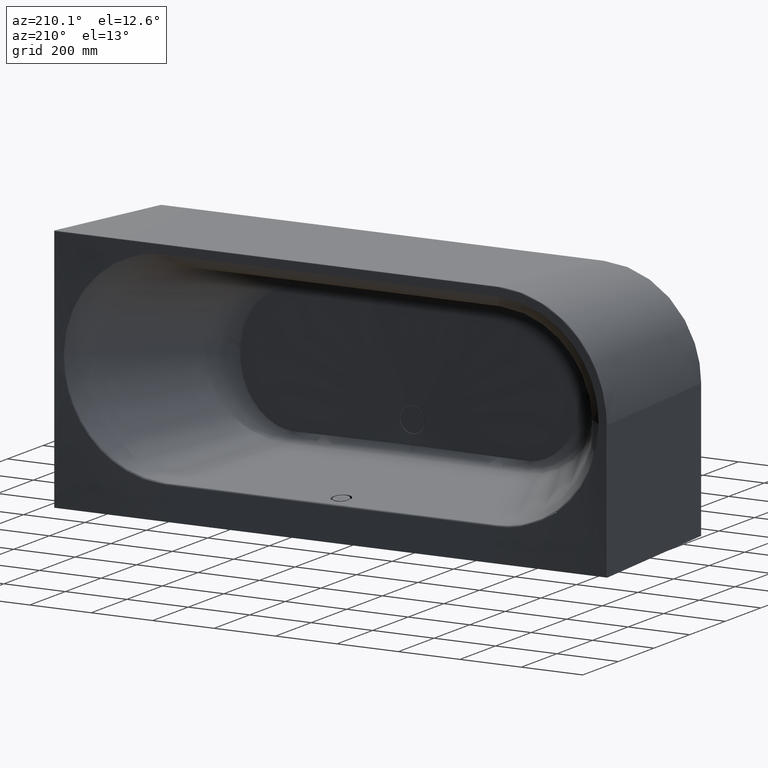
[diagram: clean part render]
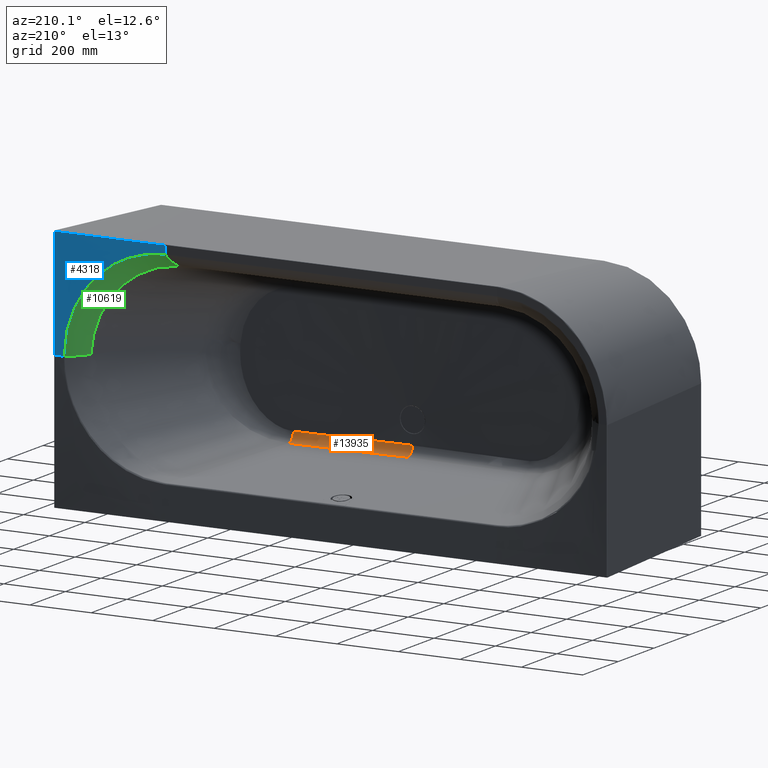
[diagram: same view with three faces highlighted in distinct colors, each labeled with its STEP entity id]
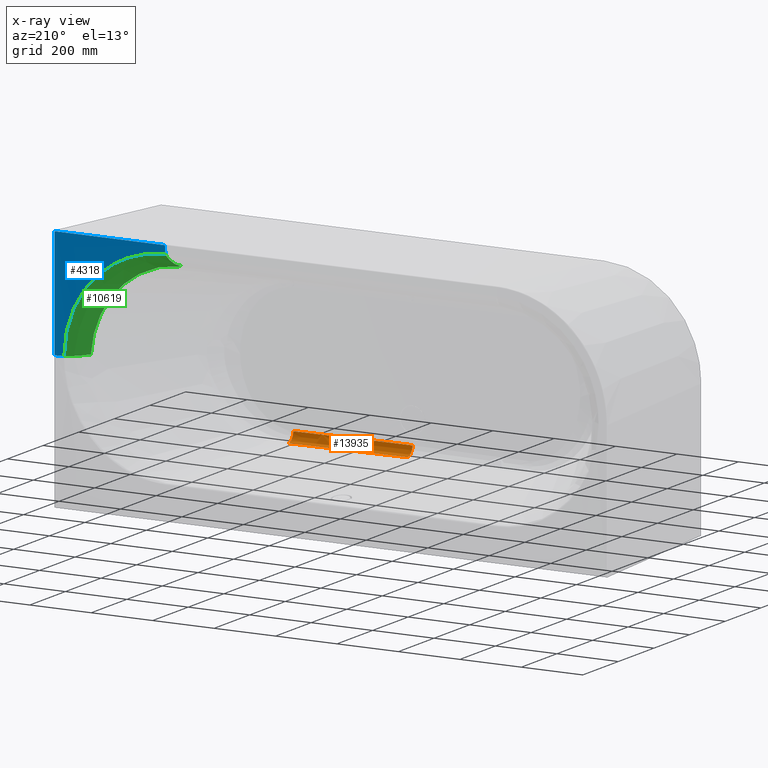
[diagram: x-ray of the same camera — body ghosted, the three highlighted faces saturated]
A machine part, auxiliary view with three faces highlighted in distinct colors.
The next image is the same camera in x-ray (body ghosted, the three faces saturated) — at least one of them is partly hidden behind the body in this view.
Their STEP definitions:

[orange] entity #13935 — the highlighted face is a freeform B-spline surface patch.
#2553=CARTESIAN_POINT('',(7.703867951122E-9,-4.327667911716E2,
-2.372312732553E2));
#2554=CARTESIAN_POINT('',(1.628760780293E0,-4.327668197229E2,
-2.372312697497E2));
#2555=CARTESIAN_POINT('',(4.885947894797E0,-4.327642047191E2,
-2.372315908318E2));
#2556=CARTESIAN_POINT('',(9.769236931457E0,-4.327525532399E2,
-2.372330214535E2));
#2557=CARTESIAN_POINT('',(1.465492356600E1,-4.327332759878E2,
-2.372353884025E2));
#2558=CARTESIAN_POINT('',(1.954616153002E1,-4.327065746793E2,
-2.372386669109E2));
#2559=CARTESIAN_POINT('',(2.445120687834E1,-4.326726898905E2,
-2.372428274398E2));
#2560=CARTESIAN_POINT('',(2.938164983050E1,-4.326318465662E2,
-2.372478423695E2));
#2561=CARTESIAN_POINT('',(3.435247625300E1,-4.325842313127E2,
-2.372536887875E2));
#2562=CARTESIAN_POINT('',(3.938154428605E1,-4.325299650725E2,
-2.372603518439E2));
#2563=CARTESIAN_POINT('',(4.448910670874E1,-4.324690916650E2,
-2.372678261585E2));
#2564=CARTESIAN_POINT('',(4.969747707414E1,-4.324015700110E2,
-2.372761167752E2));
#2565=CARTESIAN_POINT('',(5.503082689678E1,-4.323272712277E2,
-2.372852395187E2));
#2566=CARTESIAN_POINT('',(6.051514648527E1,-4.322459768184E2,
-2.372952212170E2));
#2567=CARTESIAN_POINT('',(6.617833841176E1,-4.321573769023E2,
-2.373060999188E2));
#2568=CARTESIAN_POINT('',(7.205043232266E1,-4.320610671565E2,
-2.373179252687E2));
#2569=CARTESIAN_POINT('',(7.816390474154E1,-4.319565437603E2,
-2.373307591280E2));
#2570=CARTESIAN_POINT('',(8.455409766700E1,-4.318431956991E2,
-2.373446765199E2));
#2571=CARTESIAN_POINT('',(9.125973571231E1,-4.317202938418E2,
-2.373597669705E2));
#2572=CARTESIAN_POINT('',(9.832354914266E1,-4.315869761096E2,
-2.373761363297E2));
#2573=CARTESIAN_POINT('',(1.057930172383E2,-4.314422278445E2,
-2.373939091818E2));
#2574=CARTESIAN_POINT('',(1.137212534454E2,-4.312848562032E2,
-2.374132319897E2));
#2575=CARTESIAN_POINT('',(1.221680636093E2,-4.311134569078E2,
-2.374342771770E2));
#2576=CARTESIAN_POINT('',(1.312012155795E2,-4.309263711184E2,
-2.374572484235E2));
#2577=CARTESIAN_POINT('',(1.408979785285E2,-4.307216290945E2,
-2.374823875830E2));
#2578=CARTESIAN_POINT('',(1.513469957227E2,-4.304968762877E2,
-2.375099837577E2));
#2579=CARTESIAN_POINT('',(1.626505760472E2,-4.302492753373E2,
-2.375403853316E2));
#2580=CARTESIAN_POINT('',(1.749276631571E2,-4.299753721822E2,
-2.375740164103E2));
#2581=CARTESIAN_POINT('',(1.883168767475E2,-4.296709274818E2,
-2.376113975191E2));
#2582=CARTESIAN_POINT('',(2.029834314150E2,-4.293306193035E2,
-2.376531821094E2));
#2583=CARTESIAN_POINT('',(2.191158564827E2,-4.289478889911E2,
-2.377001754827E2));
#2584=CARTESIAN_POINT('',(2.369654989883E2,-4.285137549234E2,
-2.377534804436E2));
#2585=CARTESIAN_POINT('',(2.567583621949E2,-4.280182065575E2,
-2.378143261320E2));
#2586=CARTESIAN_POINT('',(2.789531735123E2,-4.274440453217E2,
-2.378848242678E2));
#2587=CARTESIAN_POINT('',(3.041221837856E2,-4.267649339677E2,
-2.379682086551E2));
#2588=CARTESIAN_POINT('',(3.278995283461E2,-4.260920275845E2,
-2.380508311777E2));
#2589=CARTESIAN_POINT('',(3.480918379955E2,-4.254995223026E2,
-2.381235816495E2));
#2590=CARTESIAN_POINT('',(3.662975883604E2,-4.249247601321E2,
-2.381941536785E2));
#2591=CARTESIAN_POINT('',(3.772034911764E2,-4.246254079085E2,
-2.382309092405E2));
#2592=CARTESIAN_POINT('',(3.823320302679E2,-4.243401347451E2,
-2.382659363806E2));
#2709=CARTESIAN_POINT('',(-7.786323620313E-9,-4.591004420748E2,
-2.082401845906E2));
#2710=CARTESIAN_POINT('',(1.650915897211E0,-4.591004414759E2,
-2.082402131988E2));
#2711=CARTESIAN_POINT('',(4.935865286333E0,-4.590975894704E2,
-2.082396367829E2));
#2712=CARTESIAN_POINT('',(9.873326611859E0,-4.590848259537E2,
-2.082371513231E2));
#2713=CARTESIAN_POINT('',(1.480828591157E1,-4.590637337074E2,
-2.082331718072E2));
#2714=CARTESIAN_POINT('',(1.974789894105E1,-4.590345470903E2,
-2.082279346083E2));
#2715=CARTESIAN_POINT('',(2.469883357696E1,-4.589975248142E2,
-2.082217488496E2));
#2716=CARTESIAN_POINT('',(2.967275630651E1,-4.589529101565E2,
-2.082149481570E2));
#2717=CARTESIAN_POINT('',(3.468442830560E1,-4.589008968055E2,
-2.082078773653E2));
#2718=CARTESIAN_POINT('',(3.975168728515E1,-4.588416051759E2,
-2.082008719244E2));
#2719=CARTESIAN_POINT('',(4.489480469652E1,-4.587750690995E2,
-2.081942510560E2));
#2720=CARTESIAN_POINT('',(5.013616963831E1,-4.587012288354E2,
-2.081883141830E2));
#2721=CARTESIAN_POINT('',(5.550005825305E1,-4.586199283577E2,
-2.081833418770E2));
#2722=CARTESIAN_POINT('',(6.101258423221E1,-4.585309141348E2,
-2.081795986273E2));
#2723=CARTESIAN_POINT('',(6.670178195909E1,-4.584338339458E2,
-2.081773366687E2));
#2724=CARTESIAN_POINT('',(7.259781499419E1,-4.583282345548E2,
-2.081768000180E2));
#2725=CARTESIAN_POINT('',(7.873329155187E1,-4.582135575761E2,
-2.081782283037E2));
#2726=CARTESIAN_POINT('',(8.514368049998E1,-4.580891330352E2,
-2.081818600896E2));
#2727=CARTESIAN_POINT('',(9.186782704157E1,-4.579541702395E2,
-2.081879354709E2));
#2728=CARTESIAN_POINT('',(9.894857509752E1,-4.578077455647E2,
-2.081966977129E2));
#2729=CARTESIAN_POINT('',(1.064335105564E2,-4.576487866918E2,
-2.082083936066E2));
#2730=CARTESIAN_POINT('',(1.143758466970E2,-4.574760527118E2,
-2.082232720811E2));
#2731=CARTESIAN_POINT('',(1.228354829343E2,-4.572881093027E2,
-2.082415803511E2));
#2732=CARTESIAN_POINT('',(1.318802752743E2,-4.570832980022E2,
-2.082635565150E2));
#2733=CARTESIAN_POINT('',(1.415875763656E2,-4.568596981314E2,
-2.082894169273E2));
#2734=CARTESIAN_POINT('',(1.520461103344E2,-4.566150796650E2,
-2.083193359236E2));
#2735=CARTESIAN_POINT('',(1.633582635682E2,-4.563468450541E2,
-2.083534136836E2));
#2736=CARTESIAN_POINT('',(1.756430630377E2,-4.560519529518E2,
-2.083916279851E2));
#2737=CARTESIAN_POINT('',(1.890392007897E2,-4.557268399570E2,
-2.084337545054E2));
#2738=CARTESIAN_POINT('',(2.037120110747E2,-4.553672424803E2,
-2.084792652832E2));
#2739=CARTESIAN_POINT('',(2.198500577651E2,-4.549682757979E2,
-2.085270982391E2));
#2740=CARTESIAN_POINT('',(2.377049700598E2,-4.545234342490E2,
-2.085755495818E2));
#2741=CARTESIAN_POINT('',(2.575026767032E2,-4.540267898601E2,
-2.086213187438E2));
#2742=CARTESIAN_POINT('',(2.797020498868E2,-4.534665580398E2,
-2.086602676698E2));
#2743=CARTESIAN_POINT('',(3.048773141846E2,-4.528276876542E2,
-2.086829933329E2));
#2744=CARTESIAN_POINT('',(3.286595281837E2,-4.522215110021E2,
-2.086778678380E2));
#2745=CARTESIAN_POINT('',(3.488560974550E2,-4.517048833585E2,
-2.086562057207E2));
#2746=CARTESIAN_POINT('',(3.670663008009E2,-4.512392005192E2,
-2.085948929944E2));
#2747=CARTESIAN_POINT('',(3.779742338080E2,-4.509569028190E2,
-2.086113983646E2));
#2748=CARTESIAN_POINT('',(3.831061649916E2,-4.508271108222E2,
-2.084702241403E2));
#2750=CARTESIAN_POINT('',(3.831061649916E2,-4.508271108222E2,
-2.084702241403E2));
#3540=CARTESIAN_POINT('',(-7.686657455598E-4,-4.291107093412E2,
-2.074548757974E2));
#3541=DIRECTION('',(9.999999994280E-1,2.503440229521E-5,2.274173020943E-5));
#3542=DIRECTION('',(2.562113273607E-5,-9.996573246440E-1,-2.617694843106E-2));
#3543=AXIS2_PLACEMENT_3D('',#3540,#3541,#3542);
#3545=CARTESIAN_POINT('',(3.812972816193E2,-4.207283110227E2,
-2.083476103910E2));
#3546=DIRECTION('',(9.978328528851E-1,5.985662484699E-2,2.732731536530E-2));
#3547=DIRECTION('',(5.998945603921E-2,-9.981907282958E-1,-4.066338453040E-3));
#3548=AXIS2_PLACEMENT_3D('',#3545,#3546,#3547);
#3550=CARTESIAN_POINT('',(3.823320302679E2,-4.243401347451E2,
-2.382659363806E2));
#3719=VERTEX_POINT('',#2750);
#3721=VERTEX_POINT('',#3550);
#3792=CARTESIAN_POINT('',(-3.143018316388E-8,-4.591004420846E2,
-2.082401845909E2));
#3793=CARTESIAN_POINT('',(2.887497542068E-8,-4.327667911325E2,
-2.372312732601E2));
#3794=VERTEX_POINT('',#3792);
#3795=VERTEX_POINT('',#3793);
#13763=CARTESIAN_POINT('',(-3.848644144678E0,-4.589888634415E2,
-2.047830534073E2));
#13764=CARTESIAN_POINT('',(-2.198530355420E0,-4.589911042947E2,
-2.047827620912E2));
#13765=CARTESIAN_POINT('',(1.133046071487E0,-4.589927250630E2,
-2.047824842242E2));
#13766=CARTESIAN_POINT('',(6.146124959773E0,-4.589862916815E2,
-2.047838689562E2));
#13767=CARTESIAN_POINT('',(1.119036943568E1,-4.589708942010E2,
-2.047872393327E2));
#13768=CARTESIAN_POINT('',(1.623687385901E1,-4.589467702271E2,
-2.047924761880E2));
#13769=CARTESIAN_POINT('',(2.129135994239E1,-4.589141802797E2,
-2.047995310594E2));
#13770=CARTESIAN_POINT('',(2.636297671075E1,-4.588734064929E2,
-2.048083409874E2));
#13771=CARTESIAN_POINT('',(3.146492158567E1,-4.588247035932E2,
-2.048188598726E2));
#13772=CARTESIAN_POINT('',(3.661388747545E1,-4.587682650117E2,
-2.048310577706E2));
#13773=CARTESIAN_POINT('',(4.182964689360E1,-4.587041986223E2,
-2.048449263650E2));
#13774=CARTESIAN_POINT('',(4.713456728300E1,-4.586325135119E2,
-2.048604802040E2));
#13775=CARTESIAN_POINT('',(5.255328402738E1,-4.585531134713E2,
-2.048777573341E2));
#13776=CARTESIAN_POINT('',(5.811252946073E1,-4.584657944310E2,
-2.048968190407E2));
#13777=CARTESIAN_POINT('',(6.384113130335E1,-4.583702431664E2,
-2.049177493290E2));
#13778=CARTESIAN_POINT('',(6.977016154246E1,-4.582660355489E2,
-2.049406543246E2));
#13779=CARTESIAN_POINT('',(7.593321957622E1,-4.581526331782E2,
-2.049656616710E2));
#13780=CARTESIAN_POINT('',(8.236683685286E1,-4.580293776496E2,
-2.049929198938E2));
#13781=CARTESIAN_POINT('',(8.911099840206E1,-4.578954819162E2,
-2.050225975605E2));
#13782=CARTESIAN_POINT('',(9.620978511129E1,-4.577500182731E2,
-2.050548819963E2));
#13783=CARTESIAN_POINT('',(1.037121493075E2,-4.575919024491E2,
-2.050899771320E2));
#13784=CARTESIAN_POINT('',(1.116728452578E2,-4.574198731680E2,
-2.051280999028E2));
#13785=CARTESIAN_POINT('',(1.201535462797E2,-4.572324663475E2,
-2.051694743169E2));
#13786=CARTESIAN_POINT('',(1.292241914099E2,-4.570279828343E2,
-2.052143218900E2));
#13787=CARTESIAN_POINT('',(1.389646215853E2,-4.568044481607E2,
-2.052628465136E2));
#13788=CARTESIAN_POINT('',(1.494665761056E2,-4.565595624916E2,
-2.053152107831E2));
#13789=CARTESIAN_POINT('',(1.608361793491E2,-4.562906374858E2,
-2.053714994896E2));
#13790=CARTESIAN_POINT('',(1.731969585337E2,-4.559945187834E2,
-2.054316628257E2));
#13791=CARTESIAN_POINT('',(1.866939674672E2,-4.556674799562E2,
-2.054954310672E2));
#13792=CARTESIAN_POINT('',(2.014978200063E2,-4.553051164209E2,
-2.055621748825E2));
#13793=CARTESIAN_POINT('',(2.178146355645E2,-4.549020914581E2,
-2.056307201213E2));
#13794=CARTESIAN_POINT('',(2.358809049867E2,-4.544522538632E2,
-2.056989388050E2));
#13795=CARTESIAN_POINT('',(2.560264563009E2,-4.539470442867E2,
-2.057635562273E2));
#13796=CARTESIAN_POINT('',(2.784802491737E2,-4.533804040196E2,
-2.058181243120E2));
#13797=CARTESIAN_POINT('',(3.022911887161E2,-4.527760224925E2,
-2.058532803769E2));
#13798=CARTESIAN_POINT('',(3.256333013257E2,-4.521813752137E2,
-2.058549373631E2));
#13799=CARTESIAN_POINT('',(3.468882905723E2,-4.516364239808E2,
-2.058431546483E2));
#13800=CARTESIAN_POINT('',(3.657333981040E2,-4.511573345488E2,
-2.057680864584E2));
#13801=CARTESIAN_POINT('',(3.788736423986E2,-4.508091547838E2,
-2.057971093800E2));
#13802=CARTESIAN_POINT('',(3.857211269546E2,-4.506483903448E2,
-2.055941323567E2));
#13803=CARTESIAN_POINT('',(3.870661539529E2,-4.506231136807E2,
-2.055374236299E2));
#13804=CARTESIAN_POINT('',(-3.847645282624E0,-4.606299259882E2,
-2.231338398028E2));
#13805=CARTESIAN_POINT('',(-2.197935841022E0,-4.606321671259E2,
-2.231335586926E2));
#13806=CARTESIAN_POINT('',(1.132347213178E0,-4.606337907400E2,
-2.231333305721E2));
#13807=CARTESIAN_POINT('',(6.140911637599E0,-4.606273322853E2,
-2.231343408205E2));
#13808=CARTESIAN_POINT('',(1.118105237560E1,-4.606118724526E2,
-2.231367795793E2));
#13809=CARTESIAN_POINT('',(1.622365849407E1,-4.605876512170E2,
-2.231405844861E2));
#13810=CARTESIAN_POINT('',(2.127437400368E1,-4.605549293761E2,
-2.231457175083E2));
#13811=CARTESIAN_POINT('',(2.634241566554E1,-4.605139887299E2,
-2.231521336996E2));
#13812=CARTESIAN_POINT('',(3.144095276459E1,-4.604650834949E2,
-2.231597964323E2));
#13813=CARTESIAN_POINT('',(3.658668587216E1,-4.604084059825E2,
-2.231686798311E2));
#13814=CARTESIAN_POINT('',(4.179937948689E1,-4.603440625557E2,
-2.231787726365E2));
#13815=CARTESIAN_POINT('',(4.710139758554E1,-4.602720603083E2,
-2.231900796991E2));
#13816=CARTESIAN_POINT('',(5.251737126196E1,-4.601923005967E2,
-2.232026227130E2));
#13817=CARTESIAN_POINT('',(5.807403072109E1,-4.601045764703E2,
-2.232164403218E2));
#13818=CARTESIAN_POINT('',(6.380020379624E1,-4.600085713902E2,
-2.232315880281E2));
#13819=CARTESIAN_POINT('',(6.972696571451E1,-4.599038574947E2,
-2.232481381093E2));
#13820=CARTESIAN_POINT('',(7.588792285657E1,-4.597898922574E2,
-2.232661796564E2));
#13821=CARTESIAN_POINT('',(8.231961815903E1,-4.596660127977E2,
-2.232858187837E2));
#13822=CARTESIAN_POINT('',(8.906205351170E1,-4.595314273175E2,
-2.233071789855E2));
#13823=CARTESIAN_POINT('',(9.615933309954E1,-4.593852032032E2,
-2.233304015896E2));
#13824=CARTESIAN_POINT('',(1.036604403584E2,-4.592262513068E2,
-2.233556461871E2));
#13825=CARTESIAN_POINT('',(1.116201701936E2,-4.590533058009E2,
-2.233830908743E2));
#13826=CARTESIAN_POINT('',(1.201002483363E2,-4.588648988243E2,
-2.234129320419E2));
#13827=CARTESIAN_POINT('',(1.291706808918E2,-4.586593288961E2,
-2.234453833124E2));
#13828=CARTESIAN_POINT('',(1.389113943672E2,-4.584346216856E2,
-2.234806730245E2));
#13829=CARTESIAN_POINT('',(1.494142368869E2,-4.581884814866E2,
-2.235190393005E2));
#13830=CARTESIAN_POINT('',(1.607854723525E2,-4.579182303273E2,
-2.235607213558E2));
#13831=CARTESIAN_POINT('',(1.731488039025E2,-4.576207339363E2,
-2.236059443630E2));
#13832=CARTESIAN_POINT('',(1.866495214606E2,-4.572923004861E2,
-2.236548959874E2));
#13833=CARTESIAN_POINT('',(2.014585074433E2,-4.569285833727E2,
-2.237076824410E2));
#13834=CARTESIAN_POINT('',(2.177823716997E2,-4.565243345176E2,
-2.237642801635E2));
#13835=CARTESIAN_POINT('',(2.358577249408E2,-4.560735567079E2,
-2.238243711204E2));
#13836=CARTESIAN_POINT('',(2.560165486965E2,-4.555678752215E2,
-2.238874089993E2));
#13837=CARTESIAN_POINT('',(2.784831796779E2,-4.550017224919E2,
-2.239514264300E2));
#13838=CARTESIAN_POINT('',(3.023262263155E2,-4.543987007298E2,
-2.240112699228E2));
#13839=CARTESIAN_POINT('',(3.256563841997E2,-4.538080364174E2,
-2.240574955364E2));
#13840=CARTESIAN_POINT('',(3.470196023125E2,-4.532653278962E2,
-2.240961239832E2));
#13841=CARTESIAN_POINT('',(3.657109752399E2,-4.527942364667E2,
-2.241027594752E2));
#13842=CARTESIAN_POINT('',(3.790600018144E2,-4.524515017584E2,
-2.241455250204E2));
#13843=CARTESIAN_POINT('',(3.865324906483E2,-4.522486216950E2,
-2.240831391057E2));
#13844=CARTESIAN_POINT('',(3.880242674743E2,-4.522127912462E2,
-2.240607502974E2));
#13845=CARTESIAN_POINT('',(-3.828732414101E0,-4.483943857760E2,
-2.369082961139E2));
#13846=CARTESIAN_POINT('',(-2.187109958426E0,-4.483966091815E2,
-2.369080239735E2));
#13847=CARTESIAN_POINT('',(1.126754365561E0,-4.483981917993E2,
-2.369078339955E2));
#13848=CARTESIAN_POINT('',(6.110651070679E0,-4.483920136225E2,
-2.369085600889E2));
#13849=CARTESIAN_POINT('',(1.112639240786E1,-4.483772466912E2,
-2.369102924484E2));
#13850=CARTESIAN_POINT('',(1.614531865728E1,-4.483540894864E2,
-2.369130115924E2));
#13851=CARTESIAN_POINT('',(2.117331485281E1,-4.483227904171E2,
-2.369166879265E2));
#13852=CARTESIAN_POINT('',(2.621977508091E1,-4.482836132720E2,
-2.369212906056E2));
#13853=CARTESIAN_POINT('',(3.129797794550E1,-4.482367996712E2,
-2.369267907724E2));
#13854=CARTESIAN_POINT('',(3.642467712894E1,-4.481825333143E2,
-2.369331662096E2));
#13855=CARTESIAN_POINT('',(4.161964531540E1,-4.481209172419E2,
-2.369404039961E2));
#13856=CARTESIAN_POINT('',(4.690522250730E1,-4.480519605070E2,
-2.369485021652E2));
#13857=CARTESIAN_POINT('',(5.230599430801E1,-4.479755716510E2,
-2.369574705143E2));
#13858=CARTESIAN_POINT('',(5.784863241086E1,-4.478915558452E2,
-2.369673309872E2));
#13859=CARTESIAN_POINT('',(6.356189930943E1,-4.477996132414E2,
-2.369781179140E2));
#13860=CARTESIAN_POINT('',(6.947680236922E1,-4.476993368018E2,
-2.369898783216E2));
#13861=CARTESIAN_POINT('',(7.562688042075E1,-4.475902084404E2,
-2.370026724630E2));
#13862=CARTESIAN_POINT('',(8.204861092483E1,-4.474715926914E2,
-2.370165746683E2));
#13863=CARTESIAN_POINT('',(8.878193337989E1,-4.473427272795E2,
-2.370316746057E2));
#13864=CARTESIAN_POINT('',(9.587089316015E1,-4.472027100110E2,
-2.370480790423E2));
#13865=CARTESIAN_POINT('',(1.033644186221E2,-4.470504812885E2,
-2.370659142145E2));
#13866=CARTESIAN_POINT('',(1.113172532409E2,-4.468848013717E2,
-2.370853289545E2));
#13867=CARTESIAN_POINT('',(1.197910747213E2,-4.467042211839E2,
-2.371064987710E2));
#13868=CARTESIAN_POINT('',(1.288558441755E2,-4.465070450388E2,
-2.371296311644E2));
#13869=CARTESIAN_POINT('',(1.385914456608E2,-4.462912829842E2,
-2.371549725747E2));
#13870=CARTESIAN_POINT('',(1.490896867738E2,-4.460545897666E2,
-2.371828175028E2));
#13871=CARTESIAN_POINT('',(1.604567920009E2,-4.457941853778E2,
-2.372135206847E2));
#13872=CARTESIAN_POINT('',(1.728164251207E2,-4.455067531946E2,
-2.372475132130E2));
#13873=CARTESIAN_POINT('',(1.863138352449E2,-4.451882974749E2,
-2.372853254259E2));
#13874=CARTESIAN_POINT('',(2.011198605191E2,-4.448339819384E2,
-2.373276149711E2));
#13875=CARTESIAN_POINT('',(2.174410597893E2,-4.444377924499E2,
-2.373752204419E2));
#13876=CARTESIAN_POINT('',(2.355139817437E2,-4.439925224826E2,
-2.374291829555E2));
#13877=CARTESIAN_POINT('',(2.556705280049E2,-4.434879852811E2,
-2.374909945308E2));
#13878=CARTESIAN_POINT('',(2.781349218341E2,-4.429155827019E2,
-2.375620811952E2));
#13879=CARTESIAN_POINT('',(3.019758118731E2,-4.422962502743E2,
-2.376403198787E2));
#13880=CARTESIAN_POINT('',(3.253036465122E2,-4.416755261482E2,
-2.377202123669E2));
#13881=CARTESIAN_POINT('',(3.466651766477E2,-4.411003326532E2,
-2.377958213117E2));
#13882=CARTESIAN_POINT('',(3.653532775195E2,-4.405707358932E2,
-2.378660117245E2));
#13883=CARTESIAN_POINT('',(3.787035961723E2,-4.402295679328E2,
-2.379139673516E2));
#13884=CARTESIAN_POINT('',(3.861704523370E2,-4.399047411706E2,
-2.379604641482E2));
#13885=CARTESIAN_POINT('',(3.876599640546E2,-4.398364895250E2,
-2.379675002881E2));
#13886=CARTESIAN_POINT('',(-3.803801324660E0,-4.299781331619E2,
-2.374425870165E2));
#13887=CARTESIAN_POINT('',(-2.172861953814E0,-4.299803319716E2,
-2.374423169681E2));
#13888=CARTESIAN_POINT('',(1.119785308913E0,-4.299818555370E2,
-2.374421295378E2));
#13889=CARTESIAN_POINT('',(6.074376501608E0,-4.299760867004E2,
-2.374428405321E2));
#13890=CARTESIAN_POINT('',(1.106076947085E1,-4.299623321043E2,
-2.374445360204E2));
#13891=CARTESIAN_POINT('',(1.605112841290E1,-4.299407309705E2,
-2.374471985089E2));
#13892=CARTESIAN_POINT('',(2.105174651159E1,-4.299115144451E2,
-2.374507995413E2));
#13893=CARTESIAN_POINT('',(2.607219323408E1,-4.298749219573E2,
-2.374553095927E2));
#13894=CARTESIAN_POINT('',(3.112592519960E1,-4.298311783676E2,
-2.374607009873E2));
#13895=CARTESIAN_POINT('',(3.622976124391E1,-4.297804566879E2,
-2.374669524540E2));
#13896=CARTESIAN_POINT('',(4.140349328853E1,-4.297228569148E2,
-2.374740517369E2));
#13897=CARTESIAN_POINT('',(4.666943193274E1,-4.296583927804E2,
-2.374819972202E2));
#13898=CARTESIAN_POINT('',(5.205210470126E1,-4.295869851111E2,
-2.374907987428E2));
#13899=CARTESIAN_POINT('',(5.757810519582E1,-4.295084585792E2,
-2.375004779948E2));
#13900=CARTESIAN_POINT('',(6.327610621485E1,-4.294225395337E2,
-2.375110687805E2));
#13901=CARTESIAN_POINT('',(6.917701884422E1,-4.293288532200E2,
-2.375226173565E2));
#13902=CARTESIAN_POINT('',(7.531428231920E1,-4.292269191868E2,
-2.375351829906E2));
#13903=CARTESIAN_POINT('',(8.172427284353E1,-4.291161440297E2,
-2.375488388475E2));
#13904=CARTESIAN_POINT('',(8.844682751555E1,-4.289958107021E2,
-2.375636732919E2));
#13905=CARTESIAN_POINT('',(9.552588778119E1,-4.288650636246E2,
-2.375797917051E2));
#13906=CARTESIAN_POINT('',(1.030102753731E2,-4.287228885910E2,
-2.375973189334E2));
#13907=CARTESIAN_POINT('',(1.109546226161E2,-4.285680861787E2,
-2.376164025258E2));
#13908=CARTESIAN_POINT('',(1.194204889566E2,-4.283992368436E2,
-2.376372169789E2));
#13909=CARTESIAN_POINT('',(1.284777067512E2,-4.282146551719E2,
-2.376599692932E2));
#13910=CARTESIAN_POINT('',(1.382060162876E2,-4.280123296560E2,
-2.376849062780E2));
#13911=CARTESIAN_POINT('',(1.486970607731E2,-4.277898429838E2,
-2.377123242046E2));
#13912=CARTESIAN_POINT('',(1.600568711320E2,-4.275442648837E2,
-2.377425817648E2));
#13913=CARTESIAN_POINT('',(1.724088812586E2,-4.272720086356E2,
-2.377761173926E2));
#13914=CARTESIAN_POINT('',(1.858980481948E2,-4.269686272232E2,
-2.378134738488E2));
#13915=CARTESIAN_POINT('',(2.006948808302E2,-4.266285550297E2,
-2.378553292674E2));
#13916=CARTESIAN_POINT('',(2.170053776484E2,-4.262446389993E2,
-2.379025536830E2));
#13917=CARTESIAN_POINT('',(2.350658824373E2,-4.258078606178E2,
-2.379562416953E2));
#13918=CARTESIAN_POINT('',(2.552060337629E2,-4.253053641657E2,
-2.380179515254E2));
#13919=CARTESIAN_POINT('',(2.776545222996E2,-4.247239053702E2,
-2.380892809159E2));
#13920=CARTESIAN_POINT('',(3.014603485001E2,-4.240808509024E2,
-2.381680523755E2));
#13921=CARTESIAN_POINT('',(3.247969526452E2,-4.234149311559E2,
-2.382495342489E2));
#13922=CARTESIAN_POINT('',(3.460479396613E2,-4.227929573479E2,
-2.383254330941E2));
#13923=CARTESIAN_POINT('',(3.648852890783E2,-4.221751505128E2,
-2.384010549950E2));
#13924=CARTESIAN_POINT('',(3.780285969185E2,-4.218306855412E2,
-2.384423837128E2));
#13925=CARTESIAN_POINT('',(3.848627262940E2,-4.213807828436E2,
-2.384975699515E2));
#13926=CARTESIAN_POINT('',(3.862023826715E2,-4.212786348214E2,
-2.385106284126E2));
#13927=(BOUNDED_SURFACE()B_SPLINE_SURFACE(3,3,((#13763,#13764,#13765,#13766,
#13767,#13768,#13769,#13770,#13771,#13772,#13773,#13774,#13775,#13776,#13777,
#13778,#13779,#13780,#13781,#13782,#13783,#13784,#13785,#13786,#13787,#13788,
#13789,#13790,#13791,#13792,#13793,#13794,#13795,#13796,#13797,#13798,#13799,
#13800,#13801,#13802,#13803),(#13804,#13805,#13806,#13807,#13808,#13809,#13810,
#13811,#13812,#13813,#13814,#13815,#13816,#13817,#13818,#13819,#13820,#13821,
#13822,#13823,#13824,#13825,#13826,#13827,#13828,#13829,#13830,#13831,#13832,
#13833,#13834,#13835,#13836,#13837,#13838,#13839,#13840,#13841,#13842,#13843,
#13844),(#13845,#13846,#13847,#13848,#13849,#13850,#13851,#13852,#13853,#13854,
#13855,#13856,#13857,#13858,#13859,#13860,#13861,#13862,#13863,#13864,#13865,
#13866,#13867,#13868,#13869,#13870,#13871,#13872,#13873,#13874,#13875,#13876,
#13877,#13878,#13879,#13880,#13881,#13882,#13883,#13884,#13885),(#13886,#13887,
#13888,#13889,#13890,#13891,#13892,#13893,#13894,#13895,#13896,#13897,#13898,
#13899,#13900,#13901,#13902,#13903,#13904,#13905,#13906,#13907,#13908,#13909,
#13910,#13911,#13912,#13913,#13914,#13915,#13916,#13917,#13918,#13919,#13920,
#13921,#13922,#13923,#13924,#13925,#13926)),.UNSPECIFIED.,.F.,.F.,.F.)B_SPLINE_SURFACE_WITH_KNOTS((4,4),(4,1,1,1,1,1,1,1,1,1,1,1,1,1,1,1,1,1,1,1,1,1,1,1,1,1,1,1,
1,1,1,1,1,1,1,1,1,1,4),(0.E0,1.E0),(6.037430344720E-1,6.087820447206E-1,
6.139161402893E-1,6.190496262945E-1,6.241859346407E-1,6.293303747118E-1,
6.344928747261E-1,6.396871887989E-1,6.449307244472E-1,6.502439237430E-1,
6.556498023245E-1,6.611736061879E-1,6.668426560770E-1,6.726863605648E-1,
6.787363821761E-1,6.850269363760E-1,6.915952108593E-1,6.984819006464E-1,
7.057318633269E-1,7.133949076103E-1,7.215267371671E-1,7.301900816719E-1,
7.394560591027E-1,7.494058257425E-1,7.601325981244E-1,7.717441240182E-1,
7.843658417798E-1,7.981445352758E-1,8.132542152664E-1,8.298989786009E-1,
8.483349471732E-1,8.688294129024E-1,8.918745371470E-1,9.174131212470E-1,
9.420933077671E-1,9.636778546699E-1,9.828511918514E-1,1.E0,1.004198277471E0),
.UNSPECIFIED.)GEOMETRIC_REPRESENTATION_ITEM()RATIONAL_B_SPLINE_SURFACE(((
1.186583908445E0,1.186583908445E0,1.186583908445E0,1.186583908445E0,
1.186583908445E0,1.186583908445E0,1.186583908445E0,1.186583908445E0,
1.186583908445E0,1.186583908445E0,1.186583908445E0,1.186583908445E0,
1.186583908445E0,1.186583908445E0,1.186583908445E0,1.186583908445E0,
1.186583908445E0,1.186583908445E0,1.186583908445E0,1.186583908445E0,
1.186583908445E0,1.186583908445E0,1.186583908445E0,1.186583908445E0,
1.186583908445E0,1.186583908445E0,1.186583908445E0,1.186583908445E0,
1.186583908445E0,1.186583908445E0,1.186583908445E0,1.186583908445E0,
1.186583908445E0,1.186583908445E0,1.186583908445E0,1.186583908445E0,
1.186583908445E0,1.186583908445E0,1.186583908445E0,1.186583908445E0,
1.186583908445E0),(9.378053638516E-1,9.378053638516E-1,9.378053638516E-1,
9.378053638516E-1,9.378053638516E-1,9.378053638516E-1,9.378053638516E-1,
9.378053638516E-1,9.378053638516E-1,9.378053638516E-1,9.378053638516E-1,
9.378053638516E-1,9.378053638516E-1,9.378053638516E-1,9.378053638516E-1,
9.378053638516E-1,9.378053638516E-1,9.378053638516E-1,9.378053638516E-1,
9.378053638516E-1,9.378053638516E-1,9.378053638516E-1,9.378053638516E-1,
9.378053638516E-1,9.378053638516E-1,9.378053638516E-1,9.378053638516E-1,
9.378053638516E-1,9.378053638516E-1,9.378053638516E-1,9.378053638516E-1,
9.378053638516E-1,9.378053638516E-1,9.378053638516E-1,9.378053638516E-1,
9.378053638516E-1,9.378053638516E-1,9.378053638516E-1,9.378053638516E-1,
9.378053638516E-1,9.378053638516E-1),(9.378053638516E-1,9.378053638516E-1,
9.378053638516E-1,9.378053638516E-1,9.378053638516E-1,9.378053638516E-1,
9.378053638516E-1,9.378053638516E-1,9.378053638516E-1,9.378053638516E-1,
9.378053638516E-1,9.378053638516E-1,9.378053638516E-1,9.378053638516E-1,
9.378053638516E-1,9.378053638516E-1,9.378053638516E-1,9.378053638516E-1,
9.378053638516E-1,9.378053638516E-1,9.378053638516E-1,9.378053638516E-1,
9.378053638516E-1,9.378053638516E-1,9.378053638516E-1,9.378053638516E-1,
9.378053638516E-1,9.378053638516E-1,9.378053638516E-1,9.378053638516E-1,
9.378053638516E-1,9.378053638516E-1,9.378053638516E-1,9.378053638516E-1,
9.378053638516E-1,9.378053638516E-1,9.378053638516E-1,9.378053638516E-1,
9.378053638516E-1,9.378053638516E-1,9.378053638516E-1),(1.186583908445E0,
1.186583908445E0,1.186583908445E0,1.186583908445E0,1.186583908445E0,
1.186583908445E0,1.186583908445E0,1.186583908445E0,1.186583908445E0,
1.186583908445E0,1.186583908445E0,1.186583908445E0,1.186583908445E0,
1.186583908445E0,1.186583908445E0,1.186583908445E0,1.186583908445E0,
1.186583908445E0,1.186583908445E0,1.186583908445E0,1.186583908445E0,
1.186583908445E0,1.186583908445E0,1.186583908445E0,1.186583908445E0,
1.186583908445E0,1.186583908445E0,1.186583908445E0,1.186583908445E0,
1.186583908445E0,1.186583908445E0,1.186583908445E0,1.186583908445E0,
1.186583908445E0,1.186583908445E0,1.186583908445E0,1.186583908445E0,
1.186583908445E0,1.186583908445E0,1.186583908445E0,1.186583908445E0)))REPRESENTATION_ITEM('')SURFACE());
#13928=ORIENTED_EDGE('',*,*,#13755,.T.);
#13929=ORIENTED_EDGE('',*,*,#11202,.T.);
#13931=ORIENTED_EDGE('',*,*,#13930,.F.);
#13932=ORIENTED_EDGE('',*,*,#11646,.F.);
#13933=EDGE_LOOP('',(#13928,#13929,#13931,#13932));
#13934=FACE_OUTER_BOUND('',#13933,.F.);
#13935=ADVANCED_FACE('',(#13934),#13927,.F.);
#2593=B_SPLINE_CURVE_WITH_KNOTS('',3,(#2553,#2554,#2555,#2556,#2557,#2558,#2559,
#2560,#2561,#2562,#2563,#2564,#2565,#2566,#2567,#2568,#2569,#2570,#2571,#2572,
#2573,#2574,#2575,#2576,#2577,#2578,#2579,#2580,#2581,#2582,#2583,#2584,#2585,
#2586,#2587,#2588,#2589,#2590,#2591,#2592),.UNSPECIFIED.,.F.,.F.,(4,1,1,1,1,1,1,
1,1,1,1,1,1,1,1,1,1,1,1,1,1,1,1,1,1,1,1,1,1,1,1,1,1,1,1,1,1,4),(0.E0,
2.702702702703E-2,5.405405405405E-2,8.108108108108E-2,1.081081081081E-1,
1.351351351351E-1,1.621621621622E-1,1.891891891892E-1,2.162162162162E-1,
2.432432432432E-1,2.702702702703E-1,2.972972972973E-1,3.243243243243E-1,
3.513513513514E-1,3.783783783784E-1,4.054054054054E-1,4.324324324324E-1,
4.594594594595E-1,4.864864864865E-1,5.135135135135E-1,5.405405405405E-1,
5.675675675676E-1,5.945945945946E-1,6.216216216216E-1,6.486486486486E-1,
6.756756756757E-1,7.027027027027E-1,7.297297297297E-1,7.567567567568E-1,
7.837837837838E-1,8.108108108108E-1,8.378378378378E-1,8.648648648649E-1,
8.918918918919E-1,9.189189189189E-1,9.459459459459E-1,9.729729729730E-1,1.E0),
.UNSPECIFIED.);
#2749=B_SPLINE_CURVE_WITH_KNOTS('',3,(#2709,#2710,#2711,#2712,#2713,#2714,#2715,
#2716,#2717,#2718,#2719,#2720,#2721,#2722,#2723,#2724,#2725,#2726,#2727,#2728,
#2729,#2730,#2731,#2732,#2733,#2734,#2735,#2736,#2737,#2738,#2739,#2740,#2741,
#2742,#2743,#2744,#2745,#2746,#2747,#2748),.UNSPECIFIED.,.F.,.F.,(4,1,1,1,1,1,1,
1,1,1,1,1,1,1,1,1,1,1,1,1,1,1,1,1,1,1,1,1,1,1,1,1,1,1,1,1,1,4),(0.E0,
2.702702702703E-2,5.405405405405E-2,8.108108108108E-2,1.081081081081E-1,
1.351351351351E-1,1.621621621622E-1,1.891891891892E-1,2.162162162162E-1,
2.432432432432E-1,2.702702702703E-1,2.972972972973E-1,3.243243243243E-1,
3.513513513514E-1,3.783783783784E-1,4.054054054054E-1,4.324324324324E-1,
4.594594594595E-1,4.864864864865E-1,5.135135135135E-1,5.405405405405E-1,
5.675675675676E-1,5.945945945946E-1,6.216216216216E-1,6.486486486486E-1,
6.756756756757E-1,7.027027027027E-1,7.297297297297E-1,7.567567567568E-1,
7.837837837838E-1,8.108108108108E-1,8.378378378378E-1,8.648648648649E-1,
8.918918918919E-1,9.189189189189E-1,9.459459459459E-1,9.729729729730E-1,1.E0),
.UNSPECIFIED.);
#3544=CIRCLE('',#3543,3.000001300858E1);
#3549=CIRCLE('',#3548,3.015335541179E1);
#11202=EDGE_CURVE('',#3795,#3721,#2593,.T.);
#11646=EDGE_CURVE('',#3794,#3719,#2749,.T.);
#13755=EDGE_CURVE('',#3794,#3795,#3544,.T.);
#13930=EDGE_CURVE('',#3719,#3721,#3549,.T.);

[blue] entity #4318 — the highlighted face is a freeform B-spline surface patch.
#24=CARTESIAN_POINT('',(8.999997197691E2,1.973698866096E-4,3.978554160910E2));
#38=CARTESIAN_POINT('',(8.999997197691E2,1.973698866096E-4,3.978554160910E2));
#39=CARTESIAN_POINT('',(8.921385914801E2,3.026807095850E-3,3.978437874903E2));
#40=CARTESIAN_POINT('',(8.753190297509E2,-2.644922487356E-2,3.978268453171E2));
#41=CARTESIAN_POINT('',(8.467849610162E2,-4.873778286448E-2,3.978168907413E2));
#42=CARTESIAN_POINT('',(8.149296446318E2,-3.900308944155E-2,3.978147550216E2));
#43=CARTESIAN_POINT('',(7.799311785968E2,-3.577102071259E-2,3.978137960019E2));
#44=CARTESIAN_POINT('',(7.416168374761E2,-5.116343555497E-2,3.978088811863E2));
#45=CARTESIAN_POINT('',(7.006560574957E2,-6.785649093782E-2,3.977928336850E2));
#46=CARTESIAN_POINT('',(6.603612399825E2,-9.199497570696E-2,3.977599173173E2));
#47=CARTESIAN_POINT('',(6.246970537177E2,-1.381699721409E-1,3.977184759961E2));
#48=CARTESIAN_POINT('',(5.934621239244E2,-1.911058179285E-1,3.976801379461E2));
#49=CARTESIAN_POINT('',(5.652871270811E2,-2.298011004714E-1,3.976519506623E2));
#50=CARTESIAN_POINT('',(5.480555500691E2,-2.374572507143E-1,3.976425123440E2));
#51=CARTESIAN_POINT('',(5.399345332538E2,-2.355670986169E-1,3.976407032266E2));
#53=CARTESIAN_POINT('',(8.710665035730E2,-2.894966963496E0,3.999996183337E1));
#54=CARTESIAN_POINT('',(8.710509410654E2,-2.886675203566E0,5.452081637783E1));
#55=CARTESIAN_POINT('',(8.691396477167E2,-2.868926747911E0,8.272680955230E1));
#56=CARTESIAN_POINT('',(8.615575054047E2,-2.926778196644E0,1.217443975540E2));
#57=CARTESIAN_POINT('',(8.493311283540E2,-2.959390904114E0,1.598179767182E2));
#58=CARTESIAN_POINT('',(8.337030947797E2,-2.955264860369E0,1.941347168237E2));
#59=CARTESIAN_POINT('',(8.148244595980E2,-2.948972195968E0,2.257819921154E2));
#60=CARTESIAN_POINT('',(7.925842887569E2,-2.951584618093E0,2.551066135710E2));
#61=CARTESIAN_POINT('',(7.667962036278E2,-2.953138888926E0,2.821618119063E2));
#62=CARTESIAN_POINT('',(7.391364918245E2,-2.947261347567E0,3.052718831481E2));
#63=CARTESIAN_POINT('',(7.121784029191E2,-2.940676010239E0,3.233802668872E2));
#64=CARTESIAN_POINT('',(6.865740904303E2,-2.935643500124E0,3.373403967192E2));
#65=CARTESIAN_POINT('',(6.623705373195E2,-2.928331265017E0,3.480219154080E2));
#66=CARTESIAN_POINT('',(6.397723195797E2,-2.916315389313E0,3.560203459819E2));
#67=CARTESIAN_POINT('',(6.186216380291E2,-2.901514254489E0,3.618991626111E2));
#68=CARTESIAN_POINT('',(5.993826183410E2,-2.889452401288E0,3.659648565865E2));
#69=CARTESIAN_POINT('',(5.812795625881E2,-2.883303587357E0,3.687427261183E2));
#70=CARTESIAN_POINT('',(5.622696366881E2,-2.886165631104E0,3.706096895333E2));
#71=CARTESIAN_POINT('',(5.476699839512E2,-2.888135406913E0,3.711524648888E2));
#72=CARTESIAN_POINT('',(5.399986603754E2,-2.884707744092E0,3.711649545970E2));
#74=CARTESIAN_POINT('',(8.999997197691E2,1.973698866096E-4,3.978554160910E2));
#75=CARTESIAN_POINT('',(8.999968383910E2,2.123834390582E-3,3.745695401567E2));
#76=CARTESIAN_POINT('',(9.000015113096E2,-2.444845749786E-3,3.272856582842E2));
#77=CARTESIAN_POINT('',(8.999993534505E2,1.024164256613E-3,2.559997648305E2));
#78=CARTESIAN_POINT('',(9.000007615171E2,1.285006415871E-3,1.840001540787E2));
#79=CARTESIAN_POINT('',(8.999978521776E2,-2.535563590463E-3,1.119997766538E2));
#80=CARTESIAN_POINT('',(9.000047448513E2,-2.726028486420E-3,6.400043742359E1));
#81=CARTESIAN_POINT('',(9.E2,0.E0,4.E1));
#93=CARTESIAN_POINT('',(5.399986603754E2,-2.884707744092E0,3.711649545970E2));
#94=CARTESIAN_POINT('',(5.399991130865E2,-2.590047147131E0,3.741082910859E2));
#95=CARTESIAN_POINT('',(5.399948552454E2,-1.999057969124E0,3.799950120950E2));
#96=CARTESIAN_POINT('',(5.400161185669E2,-1.121570557988E0,3.887807152483E2));
#97=CARTESIAN_POINT('',(5.399681317936E2,-5.310648544849E-1,3.946840026133E2));
#98=CARTESIAN_POINT('',(5.399345332538E2,-2.355670986169E-1,3.976407032266E2));
#458=CARTESIAN_POINT('',(8.710665035730E2,-2.894966963496E0,3.999996183337E1));
#469=CARTESIAN_POINT('',(9.E2,0.E0,4.E1));
#478=CARTESIAN_POINT('',(9.E2,0.E0,4.E1));
#479=CARTESIAN_POINT('',(8.967635915420E2,-3.229836299487E-1,4.000009802658E1));
#480=CARTESIAN_POINT('',(8.903042249607E2,-9.691504258452E-1,4.000021994485E1));
#481=CARTESIAN_POINT('',(8.806590406800E2,-1.934097701172E0,3.999976291452E1));
#482=CARTESIAN_POINT('',(8.742578029362E2,-2.576365513082E0,3.999986596477E1));
#483=CARTESIAN_POINT('',(8.710665035730E2,-2.894966963496E0,3.999996183337E1));
#3743=VERTEX_POINT('',#458);
#3805=VERTEX_POINT('',#469);
#3865=VERTEX_POINT('',#72);
#3934=VERTEX_POINT('',#24);
#3939=VERTEX_POINT('',#51);
#4271=CARTESIAN_POINT('',(9.581065428744E2,1.432550861932E0,3.707789444242E2));
#4272=CARTESIAN_POINT('',(8.664778042955E2,-5.060313713328E0,4.231813497597E2));
#4273=CARTESIAN_POINT('',(7.739993356232E2,1.218459773369E1,4.746032854417E2));
#4274=CARTESIAN_POINT('',(6.840082505037E2,-1.137087969830E1,5.270857136519E2));
#4275=CARTESIAN_POINT('',(5.914577869877E2,8.535515257316E0,5.784510497987E2));
#4276=CARTESIAN_POINT('',(4.998433991688E2,1.921470875164E1,6.296427152278E2));
#4277=CARTESIAN_POINT('',(9.553692716404E2,7.503403635857E0,2.949334147550E2));
#4278=CARTESIAN_POINT('',(8.650320183541E2,-1.250868349989E1,3.477882712083E2));
#4279=CARTESIAN_POINT('',(7.711326031999E2,6.472215262054E0,3.998442612198E2));
#4280=CARTESIAN_POINT('',(6.805625852147E2,9.310674535458E0,4.496589195268E2));
#4281=CARTESIAN_POINT('',(5.894508070350E2,-1.769787464947E1,5.056000603715E2));
#4282=CARTESIAN_POINT('',(4.970918802285E2,2.549887520945E1,5.536219661650E2));
#4283=CARTESIAN_POINT('',(9.544376047506E2,-1.422922832742E0,2.191424510732E2));
#4284=CARTESIAN_POINT('',(8.601123010955E2,5.554676521609E0,2.723177440784E2));
#4285=CARTESIAN_POINT('',(7.724651210072E2,-1.576398318950E1,3.242940701323E2));
#4286=CARTESIAN_POINT('',(6.762266260089E2,-3.006506946672E0,3.789121749841E2));
#4287=CARTESIAN_POINT('',(5.845187980638E2,2.237858183761E1,4.269785067191E2));
#4288=CARTESIAN_POINT('',(4.941226548538E2,6.566307741098E0,4.803199314083E2));
#4289=CARTESIAN_POINT('',(9.512035402885E2,6.577521670885E0,1.432129420874E2));
#4290=CARTESIAN_POINT('',(8.603589448213E2,-1.513974380784E1,1.982690797784E2));
#4291=CARTESIAN_POINT('',(7.650220129893E2,2.574332487512E1,2.455510206690E2));
#4292=CARTESIAN_POINT('',(6.793467133356E2,-1.972245505751E1,2.985459540223E2));
#4293=CARTESIAN_POINT('',(5.854444391066E2,-5.933886805583E0,3.526356789014E2));
#4294=CARTESIAN_POINT('',(4.918444085465E2,-5.828641380130E0,4.048403030479E2));
#4295=CARTESIAN_POINT('',(9.492476176589E2,6.771452230335E0,6.845947973982E1));
#4296=CARTESIAN_POINT('',(8.561614116942E2,-9.377942862432E0,1.202653443018E2));
#4297=CARTESIAN_POINT('',(7.686819231689E2,-5.793607792558E0,1.724028861543E2));
#4298=CARTESIAN_POINT('',(6.710633385579E2,-2.376913840939E1,2.274160985601E2));
#4299=CARTESIAN_POINT('',(5.815904231207E2,-1.728849428266E1,2.769847530251E2));
#4300=CARTESIAN_POINT('',(4.902584562786E2,-1.247082663348E-1,
3.277830955874E2));
#4301=CARTESIAN_POINT('',(9.462575088693E2,4.070129669734E0,-7.492402745216E0));
#4302=CARTESIAN_POINT('',(8.548010328650E2,-2.390419021203E0,4.510540386668E1));
#4303=CARTESIAN_POINT('',(7.643953960602E2,-1.981840159653E1,9.608126005995E1));
#4304=CARTESIAN_POINT('',(6.677485020788E2,-1.281807920500E1,1.509482875086E2));
#4305=CARTESIAN_POINT('',(5.790714249051E2,-2.189236247665E1,2.018553292765E2));
#4306=CARTESIAN_POINT('',(4.871947425094E2,-1.504372559201E1,2.533626427368E2));
#4307=B_SPLINE_SURFACE_WITH_KNOTS('',5,5,((#4271,#4272,#4273,#4274,#4275,#4276),
(#4277,#4278,#4279,#4280,#4281,#4282),(#4283,#4284,#4285,#4286,#4287,#4288),(
#4289,#4290,#4291,#4292,#4293,#4294),(#4295,#4296,#4297,#4298,#4299,#4300),(
#4301,#4302,#4303,#4304,#4305,#4306)),.UNSPECIFIED.,.F.,.F.,.F.,(6,6),(6,6),(
0.E0,1.E0),(0.E0,1.E0),.UNSPECIFIED.);
#4308=ORIENTED_EDGE('',*,*,#4209,.T.);
#4310=ORIENTED_EDGE('',*,*,#4309,.F.);
#4312=ORIENTED_EDGE('',*,*,#4311,.F.);
#4314=ORIENTED_EDGE('',*,*,#4313,.F.);
#4315=ORIENTED_EDGE('',*,*,#4256,.F.);
#4316=EDGE_LOOP('',(#4308,#4310,#4312,#4314,#4315));
#4317=FACE_OUTER_BOUND('',#4316,.F.);
#4318=ADVANCED_FACE('',(#4317),#4307,.T.);
#52=B_SPLINE_CURVE_WITH_KNOTS('',3,(#38,#39,#40,#41,#42,#43,#44,#45,#46,#47,#48,
#49,#50,#51),.UNSPECIFIED.,.F.,.F.,(4,1,1,1,1,1,1,1,1,1,1,4),(0.E0,
9.090909090909E-2,1.818181818182E-1,2.727272727273E-1,3.636363636364E-1,
4.545454545455E-1,5.454545454545E-1,6.363636363636E-1,7.272727272727E-1,
8.181818181818E-1,9.090909090909E-1,1.E0),.UNSPECIFIED.);
#73=B_SPLINE_CURVE_WITH_KNOTS('',3,(#53,#54,#55,#56,#57,#58,#59,#60,#61,#62,#63,
#64,#65,#66,#67,#68,#69,#70,#71,#72),.UNSPECIFIED.,.F.,.F.,(4,1,1,1,1,1,1,1,1,1,
1,1,1,1,1,1,1,4),(0.E0,5.882352941176E-2,1.176470588235E-1,1.764705882353E-1,
2.352941176471E-1,2.941176470588E-1,3.529411764706E-1,4.117647058824E-1,
4.705882352941E-1,5.294117647059E-1,5.882352941176E-1,6.470588235294E-1,
7.058823529412E-1,7.647058823529E-1,8.235294117647E-1,8.823529411765E-1,
9.411764705882E-1,1.E0),.UNSPECIFIED.);
#82=B_SPLINE_CURVE_WITH_KNOTS('',3,(#74,#75,#76,#77,#78,#79,#80,#81),
.UNSPECIFIED.,.F.,.F.,(4,1,1,1,1,4),(0.E0,1.952057867787E-1,3.964043400840E-1,
5.976028933894E-1,7.988014466947E-1,1.E0),.UNSPECIFIED.);
#99=B_SPLINE_CURVE_WITH_KNOTS('',3,(#93,#94,#95,#96,#97,#98),.UNSPECIFIED.,.F.,
.F.,(4,1,1,4),(0.E0,3.333333333333E-1,6.666666666667E-1,1.E0),.UNSPECIFIED.);
#484=B_SPLINE_CURVE_WITH_KNOTS('',3,(#478,#479,#480,#481,#482,#483),
.UNSPECIFIED.,.F.,.F.,(4,1,1,4),(0.E0,3.333333333333E-1,6.666666666667E-1,1.E0),
.UNSPECIFIED.);
#4209=EDGE_CURVE('',#3934,#3939,#52,.T.);
#4256=EDGE_CURVE('',#3934,#3805,#82,.T.);
#4309=EDGE_CURVE('',#3865,#3939,#99,.T.);
#4311=EDGE_CURVE('',#3743,#3865,#73,.T.);
#4313=EDGE_CURVE('',#3805,#3743,#484,.T.);

[green] entity #10619 — the highlighted face is a freeform B-spline surface patch.
#2312=CARTESIAN_POINT('',(8.690478934744E2,-3.549088557384E0,3.999999990818E1));
#2314=CARTESIAN_POINT('',(8.690478934744E2,-3.549088557384E0,3.999999990818E1));
#2315=CARTESIAN_POINT('',(8.576578904701E2,-1.017954470501E1,3.999999990818E1));
#2316=CARTESIAN_POINT('',(8.368376984409E2,-2.679833303432E1,4.000000004591E1));
#2317=CARTESIAN_POINT('',(8.216986292491E2,-4.872219049479E1,4.E1));
#2318=CARTESIAN_POINT('',(8.158728278808E2,-6.054399916379E1,4.E1));
#2331=CARTESIAN_POINT('',(8.690478934744E2,-3.549088557384E0,3.999999990818E1));
#2332=CARTESIAN_POINT('',(8.690887777480E2,-3.509962128613E0,5.358654543093E1));
#2333=CARTESIAN_POINT('',(8.674489596476E2,-3.446906220492E0,8.021357484816E1));
#2334=CARTESIAN_POINT('',(8.606854060599E2,-3.463157724214E0,1.170188206464E2));
#2335=CARTESIAN_POINT('',(8.497305062357E2,-3.482645457409E0,1.530569842144E2));
#2336=CARTESIAN_POINT('',(8.356025297075E2,-3.478557080583E0,1.859005139281E2));
#2337=CARTESIAN_POINT('',(8.185886209405E2,-3.476056369366E0,2.162126998947E2));
#2338=CARTESIAN_POINT('',(7.986305574040E2,-3.489271259671E0,2.443782709973E2));
#2339=CARTESIAN_POINT('',(7.754875335129E2,-3.512376587694E0,2.706482268152E2));
#2340=CARTESIAN_POINT('',(7.500126394862E2,-3.534260889480E0,2.939764558848E2));
#2341=CARTESIAN_POINT('',(7.242062025863E2,-3.553626953619E0,3.131409512451E2));
#2342=CARTESIAN_POINT('',(6.994447996409E2,-3.573097034303E0,3.281836821653E2));
#2343=CARTESIAN_POINT('',(6.759499283220E2,-3.590472668508E0,3.399037778354E2));
#2344=CARTESIAN_POINT('',(6.537673449936E2,-3.601883537702E0,3.489459409663E2));
#2345=CARTESIAN_POINT('',(6.329804112908E2,-3.606389888223E0,3.557920262310E2));
#2346=CARTESIAN_POINT('',(6.135735600792E2,-3.607104361714E0,3.608439127381E2));
#2347=CARTESIAN_POINT('',(5.957865850305E2,-3.609051358400E0,3.643896001390E2));
#2348=CARTESIAN_POINT('',(5.787610910277E2,-3.615721240852E0,3.668597130709E2));
#2349=CARTESIAN_POINT('',(5.607303740810E2,-3.631212818723E0,3.685193848780E2));
#2350=CARTESIAN_POINT('',(5.469660456868E2,-3.641831760695E0,3.689801981255E2));
#2351=CARTESIAN_POINT('',(5.397491259422E2,-3.643220163683E0,3.689759839708E2));
#2353=CARTESIAN_POINT('',(5.397491259422E2,-3.643220163683E0,3.689759839708E2));
#2354=CARTESIAN_POINT('',(5.372432839421E2,-1.007157964728E1,3.588883183612E2));
#2355=CARTESIAN_POINT('',(5.309125815948E2,-2.680065462398E1,3.411381427649E2));
#2356=CARTESIAN_POINT('',(5.228040677549E2,-4.891491961938E1,3.307103659248E2));
#2357=CARTESIAN_POINT('',(5.185818831709E2,-6.054399917796E1,3.276870571797E2));
#2359=CARTESIAN_POINT('',(5.185818831709E2,-6.054399917796E1,3.276870571797E2));
#2360=CARTESIAN_POINT('',(5.548647402540E2,-6.054402309277E1,3.267879083201E2));
#2361=CARTESIAN_POINT('',(6.270866314832E2,-6.056439815121E1,3.119051843008E2));
#2362=CARTESIAN_POINT('',(7.235737408208E2,-6.055467508881E1,2.514841119712E2));
#2363=CARTESIAN_POINT('',(7.935830239296E2,-6.056519167538E1,1.572624897229E2));
#2364=CARTESIAN_POINT('',(8.136014615295E2,-6.054429572970E1,7.939049160067E1));
#2365=CARTESIAN_POINT('',(8.158728278808E2,-6.054399916379E1,4.E1));
#3712=VERTEX_POINT('',#2359);
#3713=VERTEX_POINT('',#2365);
#3744=VERTEX_POINT('',#2312);
#3866=VERTEX_POINT('',#2351);
#10568=CARTESIAN_POINT('',(8.154424804832E2,-6.189695415508E1,
3.549290350854E1));
#10569=CARTESIAN_POINT('',(8.133580998444E2,-6.193400950918E1,
8.362581599588E1));
#10570=CARTESIAN_POINT('',(7.910498874158E2,-6.196689217084E1,
1.752981913746E2));
#10571=CARTESIAN_POINT('',(7.339583808175E2,-6.194509930925E1,
2.561899932505E2));
#10572=CARTESIAN_POINT('',(6.503763986740E2,-6.190502297819E1,
3.090560278556E2));
#10573=CARTESIAN_POINT('',(5.579654890593E2,-6.188305523144E1,
3.269243325323E2));
#10574=CARTESIAN_POINT('',(5.135831274656E2,-6.188069811742E1,
3.274348830291E2));
#10575=CARTESIAN_POINT('',(8.225278363089E2,-4.710054079306E1,
3.541728618872E1));
#10576=CARTESIAN_POINT('',(8.206510607524E2,-4.673647293254E1,
8.435199486526E1));
#10577=CARTESIAN_POINT('',(7.988684414544E2,-4.641502494227E1,
1.778499108975E2));
#10578=CARTESIAN_POINT('',(7.419781395989E2,-4.663307895688E1,
2.605721954097E2));
#10579=CARTESIAN_POINT('',(6.577354941397E2,-4.703154219023E1,
3.141492042988E2));
#10580=CARTESIAN_POINT('',(5.639756305930E2,-4.725132185622E1,
3.311776555171E2));
#10581=CARTESIAN_POINT('',(5.188032772727E2,-4.727602679584E1,
3.309363057036E2));
#10582=CARTESIAN_POINT('',(8.318405894030E2,-3.339443409396E1,
3.530746625007E1));
#10583=CARTESIAN_POINT('',(8.305190578985E2,-3.253934187945E1,
8.541034258777E1));
#10584=CARTESIAN_POINT('',(8.093336354013E2,-3.173856305133E1,
1.813737201359E2));
#10585=CARTESIAN_POINT('',(7.518651519060E2,-3.213958015171E1,
2.664750579069E2));
#10586=CARTESIAN_POINT('',(6.658978860721E2,-3.294247724996E1,
3.212810642248E2));
#10587=CARTESIAN_POINT('',(5.700069602338E2,-3.334733841542E1,
3.380179404143E2));
#10588=CARTESIAN_POINT('',(5.237968382211E2,-3.336174446043E1,
3.373012730954E2));
#10589=CARTESIAN_POINT('',(8.431621719401E2,-2.120059193096E1,
3.516981516427E1));
#10590=CARTESIAN_POINT('',(8.427403161994E2,-2.017124077732E1,
8.673824770434E1));
#10591=CARTESIAN_POINT('',(8.222156820650E2,-1.917952819611E1,
1.857241616858E2));
#10592=CARTESIAN_POINT('',(7.633789787675E2,-1.959493477300E1,
2.737411944710E2));
#10593=CARTESIAN_POINT('',(6.746116010148E2,-2.048088133992E1,
3.303060071334E2));
#10594=CARTESIAN_POINT('',(5.757968443019E2,-2.090078872886E1,
3.472878846921E2));
#10595=CARTESIAN_POINT('',(5.282964594351E2,-2.089170191033E1,
3.463562647561E2));
#10596=CARTESIAN_POINT('',(8.561694181623E2,-1.088794035456E1,
3.501153543213E1));
#10597=CARTESIAN_POINT('',(8.565557223367E2,-1.021601515796E1,
8.826554169646E1));
#10598=CARTESIAN_POINT('',(8.363571833511E2,-9.554629637750E0,
1.907071889810E2));
#10599=CARTESIAN_POINT('',(7.755908740742E2,-9.791742932927E0,
2.820880426283E2));
#10600=CARTESIAN_POINT('',(6.833861922045E2,-1.032931381282E1,
3.408647797263E2));
#10601=CARTESIAN_POINT('',(5.810854933396E2,-1.056930104677E1,
3.585398322538E2));
#10602=CARTESIAN_POINT('',(5.320591959151E2,-1.055000479336E1,
3.576059433107E2));
#10603=CARTESIAN_POINT('',(8.704398166876E2,-2.724052307238E0,
3.483952406118E1));
#10604=CARTESIAN_POINT('',(8.713160109806E2,-2.747313492237E0,
8.992541185877E1));
#10605=CARTESIAN_POINT('',(8.509260528259E2,-2.770199793637E0,
1.961185340050E2));
#10606=CARTESIAN_POINT('',(7.878467633127E2,-2.761966933539E0,
2.911798274198E2));
#10607=CARTESIAN_POINT('',(6.918662594427E2,-2.743327840354E0,
3.524920892338E2));
#10608=CARTESIAN_POINT('',(5.856966732295E2,-2.734995442491E0,
3.711770024140E2));
#10609=CARTESIAN_POINT('',(5.349407644146E2,-2.735653914864E0,
3.703895849513E2));
#10610=B_SPLINE_SURFACE_WITH_KNOTS('',5,5,((#10568,#10569,#10570,#10571,#10572,
#10573,#10574),(#10575,#10576,#10577,#10578,#10579,#10580,#10581),(#10582,
#10583,#10584,#10585,#10586,#10587,#10588),(#10589,#10590,#10591,#10592,#10593,
#10594,#10595),(#10596,#10597,#10598,#10599,#10600,#10601,#10602),(#10603,
#10604,#10605,#10606,#10607,#10608,#10609)),.UNSPECIFIED.,.F.,.F.,.F.,(6,6),(6,
1,6),(-1.880913285625E-2,1.006909585335E0),(-9.781847611559E-3,5.12347393E-1,
9.934220262608E-1),.UNSPECIFIED.);
#10611=ORIENTED_EDGE('',*,*,#5573,.T.);
#10613=ORIENTED_EDGE('',*,*,#10612,.T.);
#10615=ORIENTED_EDGE('',*,*,#10614,.T.);
#10616=ORIENTED_EDGE('',*,*,#10559,.F.);
#10617=EDGE_LOOP('',(#10611,#10613,#10615,#10616));
#10618=FACE_OUTER_BOUND('',#10617,.F.);
#10619=ADVANCED_FACE('',(#10618),#10610,.F.);
#2319=B_SPLINE_CURVE_WITH_KNOTS('',3,(#2314,#2315,#2316,#2317,#2318),
.UNSPECIFIED.,.F.,.F.,(4,1,4),(0.E0,5.E-1,1.E0),.UNSPECIFIED.);
#2352=B_SPLINE_CURVE_WITH_KNOTS('',3,(#2331,#2332,#2333,#2334,#2335,#2336,#2337,
#2338,#2339,#2340,#2341,#2342,#2343,#2344,#2345,#2346,#2347,#2348,#2349,#2350,
#2351),.UNSPECIFIED.,.F.,.F.,(4,1,1,1,1,1,1,1,1,1,1,1,1,1,1,1,1,1,4),(0.E0,
5.555555555556E-2,1.111111111111E-1,1.666666666667E-1,2.222222222222E-1,
2.777777777778E-1,3.333333333333E-1,3.888888888889E-1,4.444444444444E-1,5.E-1,
5.555555555556E-1,6.111111111111E-1,6.666666666667E-1,7.222222222222E-1,
7.777777777778E-1,8.333333333333E-1,8.888888888889E-1,9.444444444444E-1,1.E0),
.UNSPECIFIED.);
#2358=B_SPLINE_CURVE_WITH_KNOTS('',3,(#2353,#2354,#2355,#2356,#2357),
.UNSPECIFIED.,.F.,.F.,(4,1,4),(0.E0,5.E-1,1.E0),.UNSPECIFIED.);
#2366=B_SPLINE_CURVE_WITH_KNOTS('',3,(#2359,#2360,#2361,#2362,#2363,#2364,
#2365),.UNSPECIFIED.,.F.,.F.,(4,1,1,1,4),(0.E0,2.395646379403E-1,
4.791292758805E-1,7.395646379403E-1,1.E0),.UNSPECIFIED.);
#5573=EDGE_CURVE('',#3744,#3866,#2352,.T.);
#10559=EDGE_CURVE('',#3744,#3713,#2319,.T.);
#10612=EDGE_CURVE('',#3866,#3712,#2358,.T.);
#10614=EDGE_CURVE('',#3712,#3713,#2366,.T.);